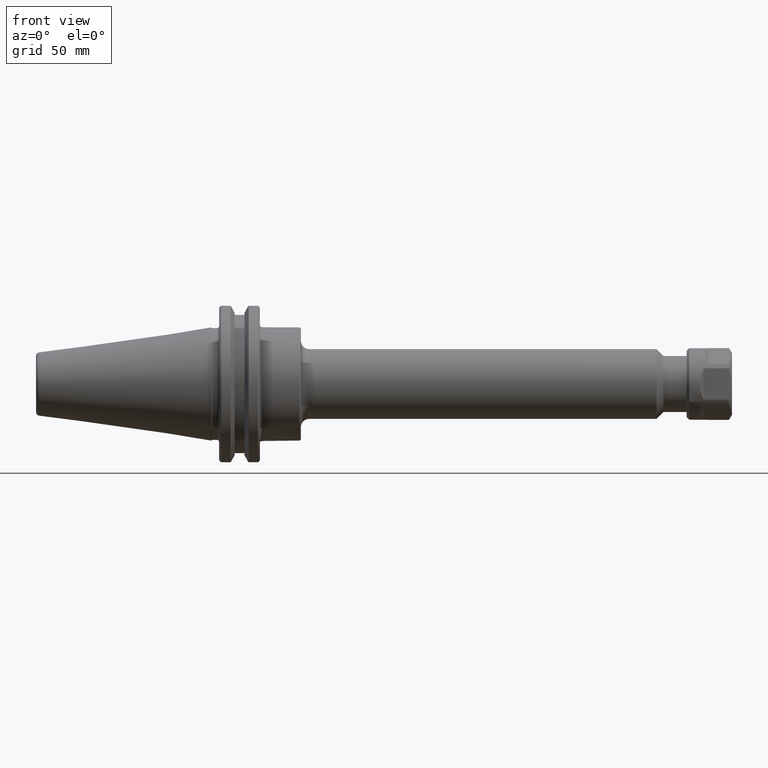
[diagram: clean part render]
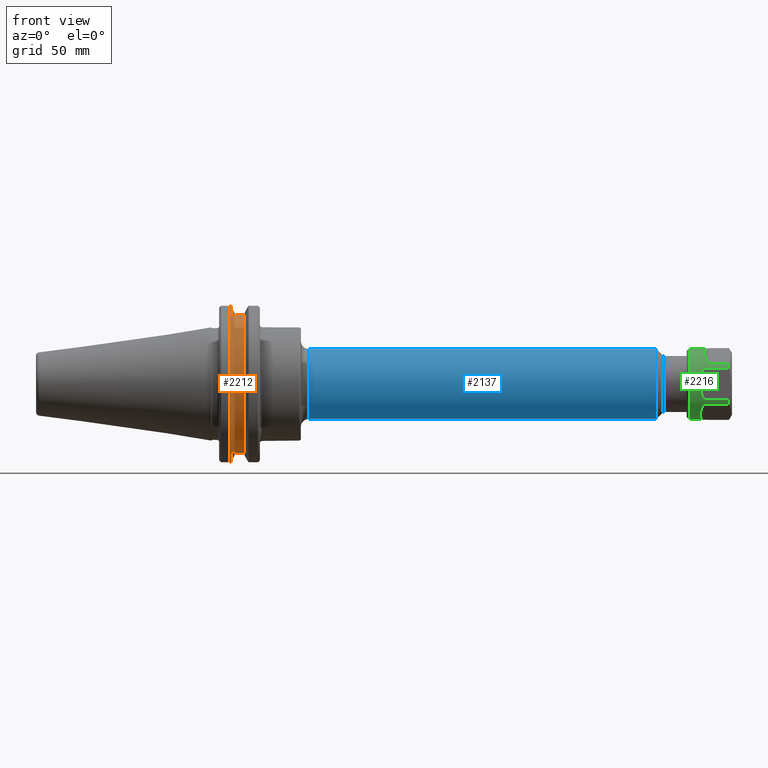
[diagram: same view with three faces highlighted in distinct colors, each labeled with its STEP entity id]
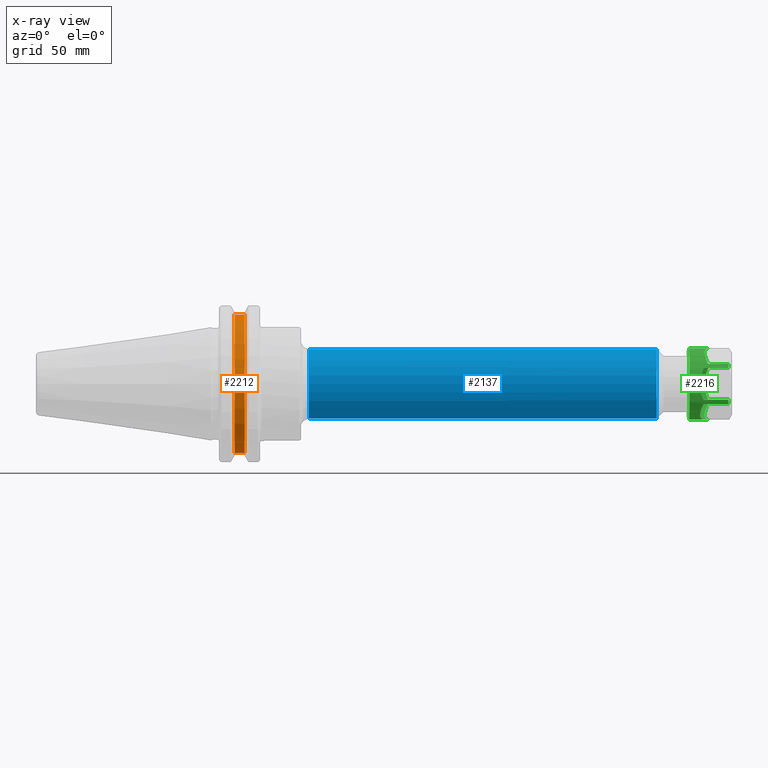
[diagram: x-ray of the same camera — body ghosted, the three highlighted faces saturated]
A machine part, front view with three faces highlighted in distinct colors.
The next image is the same camera in x-ray (body ghosted, the three faces saturated) — at least one of them is partly hidden behind the body in this view.
Their STEP definitions:

[orange] entity #2212 — the highlighted cylindrical surface (partial cylindrical patch) has radius 28.1813 mm, axis along (-1, -0, 0).
#132=LINE('',#3401,#254);
#147=LINE('',#3450,#269);
#254=VECTOR('',#2723,0.151);
#269=VECTOR('',#2754,0.151);
#447=CYLINDRICAL_SURFACE('',#2422,1.10949999999971);
#598=FACE_OUTER_BOUND('',#768,.T.);
#768=EDGE_LOOP('',(#1792,#1793,#1794,#1795));
#895=CIRCLE('',#2421,1.10949999999972);
#896=CIRCLE('',#2423,1.1094999999997);
#1010=VERTEX_POINT('',#3398);
#1011=VERTEX_POINT('',#3400);
#1024=VERTEX_POINT('',#3447);
#1025=VERTEX_POINT('',#3449);
#1232=EDGE_CURVE('',#1011,#1010,#132,.T.);
#1253=EDGE_CURVE('',#1025,#1024,#147,.T.);
#1327=EDGE_CURVE('',#1025,#1010,#895,.T.);
#1328=EDGE_CURVE('',#1024,#1011,#896,.T.);
#1792=ORIENTED_EDGE('',*,*,#1253,.T.);
#1793=ORIENTED_EDGE('',*,*,#1328,.T.);
#1794=ORIENTED_EDGE('',*,*,#1232,.T.);
#1795=ORIENTED_EDGE('',*,*,#1327,.F.);
#2212=ADVANCED_FACE('',(#598),#447,.T.);
#2421=AXIS2_PLACEMENT_3D('',#3652,#2915,#2916);
#2422=AXIS2_PLACEMENT_3D('',#3653,#2917,#2918);
#2423=AXIS2_PLACEMENT_3D('',#3654,#2919,#2920);
#2723=DIRECTION('',(-1.,-1.62451355720802E-13,0.));
#2754=DIRECTION('',(1.,1.62451355720802E-13,0.));
#2915=DIRECTION('center_axis',(-1.,-1.62451355720802E-13,0.));
#2916=DIRECTION('ref_axis',(-1.62482077846417E-13,1.,0.));
#2917=DIRECTION('center_axis',(-1.,-1.62451355720802E-13,0.));
#2918=DIRECTION('ref_axis',(-1.62482077846417E-13,1.,0.));
#2919=DIRECTION('center_axis',(-1.,-1.62451355720802E-13,0.));
#2920=DIRECTION('ref_axis',(-1.62482077846417E-13,1.,0.));
#3398=CARTESIAN_POINT('',(0.362850000000023,-0.319999999999719,1.06235128370958));
#3400=CARTESIAN_POINT('',(0.513850000000022,-0.319999999999719,1.06235128370954));
#3401=CARTESIAN_POINT('',(0.438350000000022,-0.319999999999719,1.06235128370956));
#3447=CARTESIAN_POINT('',(0.513850000000022,-0.319999999999698,-1.06235128370955));
#3449=CARTESIAN_POINT('',(0.362850000000023,-0.319999999999723,-1.06235128370958));
#3450=CARTESIAN_POINT('',(0.438350000000022,-0.319999999999711,-1.06235128370956));
#3652=CARTESIAN_POINT('Origin',(0.362849999999971,2.77239483673115E-13,
0.));
#3653=CARTESIAN_POINT('Origin',(0.438349999999971,2.89504561030036E-13,
0.));
#3654=CARTESIAN_POINT('Origin',(0.513849999999971,3.01769638386956E-13,
0.));

[blue] entity #2137 — the highlighted cylindrical surface (bore or boss wall) has radius 13.716 mm, axis along (1, 0, 0).
#422=CYLINDRICAL_SURFACE('',#2294,0.54);
#467=FACE_BOUND('',#669,.T.);
#523=FACE_OUTER_BOUND('',#668,.T.);
#668=EDGE_LOOP('',(#1463));
#669=EDGE_LOOP('',(#1464));
#854=CIRCLE('',#2293,0.54);
#855=CIRCLE('',#2295,0.540000000000001);
#958=VERTEX_POINT('',#3232);
#959=VERTEX_POINT('',#3235);
#1166=EDGE_CURVE('',#958,#958,#854,.T.);
#1167=EDGE_CURVE('',#959,#959,#855,.T.);
#1463=ORIENTED_EDGE('',*,*,#1167,.F.);
#1464=ORIENTED_EDGE('',*,*,#1166,.F.);
#2137=ADVANCED_FACE('',(#523,#467),#422,.T.);
#2293=AXIS2_PLACEMENT_3D('',#3233,#2584,#2585);
#2294=AXIS2_PLACEMENT_3D('',#3234,#2586,#2587);
#2295=AXIS2_PLACEMENT_3D('',#3236,#2588,#2589);
#2584=DIRECTION('center_axis',(-1.,0.,0.));
#2585=DIRECTION('ref_axis',(0.,-1.,-1.22464679914735E-16));
#2586=DIRECTION('center_axis',(1.,0.,0.));
#2587=DIRECTION('ref_axis',(0.,1.,0.));
#2588=DIRECTION('center_axis',(1.,0.,0.));
#2589=DIRECTION('ref_axis',(0.,1.,0.));
#3232=CARTESIAN_POINT('',(1.505,0.54,0.));
#3233=CARTESIAN_POINT('Origin',(1.505,0.,0.));
#3234=CARTESIAN_POINT('Origin',(4.11003543307086,0.,0.));
#3235=CARTESIAN_POINT('',(6.84007086614173,0.540000000000001,0.));
#3236=CARTESIAN_POINT('Origin',(6.84007086614173,0.,0.));

[green] entity #2216 — the highlighted cylindrical surface (bore or boss wall) has radius 14 mm, axis along (-1, 0, -0).
#86=ELLIPSE('',#2428,19.7989898732233,14.);
#87=ELLIPSE('',#2432,19.7989898732233,14.);
#88=ELLIPSE('',#2434,19.7989898732233,14.);
#89=ELLIPSE('',#2436,19.7989898732233,14.);
#90=ELLIPSE('',#2438,19.7989898732233,14.);
#91=ELLIPSE('',#2440,19.7989898732233,14.);
#175=LINE('',#3667,#297);
#176=LINE('',#3669,#298);
#177=LINE('',#3673,#299);
#178=LINE('',#3677,#300);
#179=LINE('',#3681,#301);
#180=LINE('',#3685,#302);
#181=LINE('',#3689,#303);
#182=LINE('',#3693,#304);
#183=LINE('',#3697,#305);
#184=LINE('',#3701,#306);
#185=LINE('',#3705,#307);
#186=LINE('',#3709,#308);
#297=VECTOR('',#2936,9.59380985847815);
#298=VECTOR('',#2937,9.59380985847815);
#299=VECTOR('',#2940,9.59380985847815);
#300=VECTOR('',#2943,9.59380985847815);
#301=VECTOR('',#2946,7.82180985847815);
#302=VECTOR('',#2949,7.82180985847815);
#303=VECTOR('',#2952,7.82180985847815);
#304=VECTOR('',#2955,7.82180985847815);
#305=VECTOR('',#2958,7.82180985847815);
#306=VECTOR('',#2961,7.82180985847815);
#307=VECTOR('',#2964,7.82180985847815);
#308=VECTOR('',#2967,7.82180985847815);
#449=CYLINDRICAL_SURFACE('',#2429,14.);
#492=FACE_BOUND('',#773,.T.);
#602=FACE_OUTER_BOUND('',#772,.T.);
#772=EDGE_LOOP('',(#1806));
#773=EDGE_LOOP('',(#1807,#1808,#1809,#1810,#1811,#1812,#1813,#1814,#1815,
#1816,#1817,#1818,#1819,#1820,#1821,#1822,#1823,#1824,#1825,#1826,#1827,
#1828,#1829,#1830));
#897=CIRCLE('',#2430,14.);
#898=CIRCLE('',#2431,14.);
#899=CIRCLE('',#2433,14.);
#900=CIRCLE('',#2435,14.);
#901=CIRCLE('',#2437,14.);
#902=CIRCLE('',#2439,14.);
#903=CIRCLE('',#2441,14.);
#1068=VERTEX_POINT('',#3659);
#1069=VERTEX_POINT('',#3660);
#1070=VERTEX_POINT('',#3664);
#1071=VERTEX_POINT('',#3666);
#1072=VERTEX_POINT('',#3668);
#1073=VERTEX_POINT('',#3670);
#1074=VERTEX_POINT('',#3672);
#1075=VERTEX_POINT('',#3674);
#1076=VERTEX_POINT('',#3676);
#1077=VERTEX_POINT('',#3678);
#1078=VERTEX_POINT('',#3680);
#1079=VERTEX_POINT('',#3682);
#1080=VERTEX_POINT('',#3684);
#1081=VERTEX_POINT('',#3686);
#1082=VERTEX_POINT('',#3688);
#1083=VERTEX_POINT('',#3690);
#1084=VERTEX_POINT('',#3692);
#1085=VERTEX_POINT('',#3694);
#1086=VERTEX_POINT('',#3696);
#1087=VERTEX_POINT('',#3698);
#1088=VERTEX_POINT('',#3700);
#1089=VERTEX_POINT('',#3702);
#1090=VERTEX_POINT('',#3704);
#1091=VERTEX_POINT('',#3706);
#1092=VERTEX_POINT('',#3708);
#1329=EDGE_CURVE('',#1068,#1069,#86,.T.);
#1331=EDGE_CURVE('',#1070,#1070,#897,.T.);
#1332=EDGE_CURVE('',#1071,#1068,#175,.T.);
#1333=EDGE_CURVE('',#1069,#1072,#176,.T.);
#1334=EDGE_CURVE('',#1072,#1073,#898,.T.);
#1335=EDGE_CURVE('',#1073,#1074,#177,.T.);
#1336=EDGE_CURVE('',#1074,#1075,#87,.T.);
#1337=EDGE_CURVE('',#1075,#1076,#178,.T.);
#1338=EDGE_CURVE('',#1076,#1077,#899,.T.);
#1339=EDGE_CURVE('',#1077,#1078,#179,.T.);
#1340=EDGE_CURVE('',#1078,#1079,#88,.T.);
#1341=EDGE_CURVE('',#1079,#1080,#180,.T.);
#1342=EDGE_CURVE('',#1080,#1081,#900,.T.);
#1343=EDGE_CURVE('',#1081,#1082,#181,.T.);
#1344=EDGE_CURVE('',#1082,#1083,#89,.T.);
#1345=EDGE_CURVE('',#1083,#1084,#182,.T.);
#1346=EDGE_CURVE('',#1084,#1085,#901,.T.);
#1347=EDGE_CURVE('',#1085,#1086,#183,.T.);
#1348=EDGE_CURVE('',#1086,#1087,#90,.T.);
#1349=EDGE_CURVE('',#1087,#1088,#184,.T.);
#1350=EDGE_CURVE('',#1088,#1089,#902,.T.);
#1351=EDGE_CURVE('',#1089,#1090,#185,.T.);
#1352=EDGE_CURVE('',#1090,#1091,#91,.T.);
#1353=EDGE_CURVE('',#1091,#1092,#186,.T.);
#1354=EDGE_CURVE('',#1092,#1071,#903,.T.);
#1806=ORIENTED_EDGE('',*,*,#1331,.F.);
#1807=ORIENTED_EDGE('',*,*,#1332,.T.);
#1808=ORIENTED_EDGE('',*,*,#1329,.T.);
#1809=ORIENTED_EDGE('',*,*,#1333,.T.);
#1810=ORIENTED_EDGE('',*,*,#1334,.T.);
#1811=ORIENTED_EDGE('',*,*,#1335,.T.);
#1812=ORIENTED_EDGE('',*,*,#1336,.T.);
#1813=ORIENTED_EDGE('',*,*,#1337,.T.);
#1814=ORIENTED_EDGE('',*,*,#1338,.T.);
#1815=ORIENTED_EDGE('',*,*,#1339,.T.);
#1816=ORIENTED_EDGE('',*,*,#1340,.T.);
#1817=ORIENTED_EDGE('',*,*,#1341,.T.);
#1818=ORIENTED_EDGE('',*,*,#1342,.T.);
#1819=ORIENTED_EDGE('',*,*,#1343,.T.);
#1820=ORIENTED_EDGE('',*,*,#1344,.T.);
#1821=ORIENTED_EDGE('',*,*,#1345,.T.);
#1822=ORIENTED_EDGE('',*,*,#1346,.T.);
#1823=ORIENTED_EDGE('',*,*,#1347,.T.);
#1824=ORIENTED_EDGE('',*,*,#1348,.T.);
#1825=ORIENTED_EDGE('',*,*,#1349,.T.);
#1826=ORIENTED_EDGE('',*,*,#1350,.T.);
#1827=ORIENTED_EDGE('',*,*,#1351,.T.);
#1828=ORIENTED_EDGE('',*,*,#1352,.T.);
#1829=ORIENTED_EDGE('',*,*,#1353,.T.);
#1830=ORIENTED_EDGE('',*,*,#1354,.T.);
#2216=ADVANCED_FACE('',(#602,#492),#449,.T.);
#2428=AXIS2_PLACEMENT_3D('',#3661,#2929,#2930);
#2429=AXIS2_PLACEMENT_3D('',#3663,#2932,#2933);
#2430=AXIS2_PLACEMENT_3D('',#3665,#2934,#2935);
#2431=AXIS2_PLACEMENT_3D('',#3671,#2938,#2939);
#2432=AXIS2_PLACEMENT_3D('',#3675,#2941,#2942);
#2433=AXIS2_PLACEMENT_3D('',#3679,#2944,#2945);
#2434=AXIS2_PLACEMENT_3D('',#3683,#2947,#2948);
#2435=AXIS2_PLACEMENT_3D('',#3687,#2950,#2951);
#2436=AXIS2_PLACEMENT_3D('',#3691,#2953,#2954);
#2437=AXIS2_PLACEMENT_3D('',#3695,#2956,#2957);
#2438=AXIS2_PLACEMENT_3D('',#3699,#2959,#2960);
#2439=AXIS2_PLACEMENT_3D('',#3703,#2962,#2963);
#2440=AXIS2_PLACEMENT_3D('',#3707,#2965,#2966);
#2441=AXIS2_PLACEMENT_3D('',#3710,#2968,#2969);
#2929=DIRECTION('center_axis',(0.707106781186548,-0.612372435695794,0.353553390593274));
#2930=DIRECTION('ref_axis',(0.707106781186548,0.612372435695794,-0.353553390593274));
#2932=DIRECTION('center_axis',(1.,0.,0.));
#2933=DIRECTION('ref_axis',(5.76530977291351E-18,1.,0.));
#2934=DIRECTION('center_axis',(1.,0.,0.));
#2935=DIRECTION('ref_axis',(5.76530977291351E-18,1.,0.));
#2936=DIRECTION('',(1.,0.,0.));
#2937=DIRECTION('',(-1.,0.,0.));
#2938=DIRECTION('center_axis',(1.,0.,0.));
#2939=DIRECTION('ref_axis',(5.76530977291351E-18,1.,0.));
#2940=DIRECTION('',(1.,0.,0.));
#2941=DIRECTION('center_axis',(0.707106781186548,-0.612372435695794,-0.353553390593273));
#2942=DIRECTION('ref_axis',(0.707106781186547,0.612372435695795,0.353553390593274));
#2943=DIRECTION('',(-1.,0.,0.));
#2944=DIRECTION('center_axis',(1.,0.,0.));
#2945=DIRECTION('ref_axis',(5.76530977291351E-18,1.,0.));
#2946=DIRECTION('',(1.,0.,0.));
#2947=DIRECTION('center_axis',(0.707106781186547,0.,-0.707106781186548));
#2948=DIRECTION('ref_axis',(0.707106781186548,0.,0.707106781186547));
#2949=DIRECTION('',(-1.,0.,0.));
#2950=DIRECTION('center_axis',(1.,0.,0.));
#2951=DIRECTION('ref_axis',(5.76530977291351E-18,1.,0.));
#2952=DIRECTION('',(1.,0.,0.));
#2953=DIRECTION('center_axis',(0.707106781186547,0.612372435695795,-0.353553390593274));
#2954=DIRECTION('ref_axis',(-0.707106781186548,0.612372435695794,-0.353553390593274));
#2955=DIRECTION('',(-1.,0.,0.));
#2956=DIRECTION('center_axis',(1.,0.,0.));
#2957=DIRECTION('ref_axis',(5.76530977291351E-18,1.,0.));
#2958=DIRECTION('',(1.,0.,0.));
#2959=DIRECTION('center_axis',(0.707106781186547,0.612372435695795,0.353553390593274));
#2960=DIRECTION('ref_axis',(-0.707106781186548,0.612372435695794,0.353553390593273));
#2961=DIRECTION('',(-1.,0.,0.));
#2962=DIRECTION('center_axis',(1.,0.,0.));
#2963=DIRECTION('ref_axis',(5.76530977291351E-18,1.,0.));
#2964=DIRECTION('',(1.,0.,0.));
#2965=DIRECTION('center_axis',(0.707106781186547,1.11022302462516E-16,0.707106781186548));
#2966=DIRECTION('ref_axis',(-0.707106781186548,0.,0.707106781186547));
#2967=DIRECTION('',(-1.,0.,0.));
#2968=DIRECTION('center_axis',(1.,0.,0.));
#2969=DIRECTION('ref_axis',(5.76530977291351E-18,1.,0.));
#3659=CARTESIAN_POINT('',(10.715,7.80958989492165,-11.6193935157192));
#3660=CARTESIAN_POINT('',(10.715,13.9674849086418,-0.953606484280796));
#3661=CARTESIAN_POINT('Origin',(-1.858,0.,0.));
#3663=CARTESIAN_POINT('Origin',(8.74559507076093,0.,0.));
#3664=CARTESIAN_POINT('',(16.37,14.,0.));
#3665=CARTESIAN_POINT('Origin',(16.37,0.,0.));
#3666=CARTESIAN_POINT('',(1.12119014152185,7.80958989492164,-11.6193935157192));
#3667=CARTESIAN_POINT('',(8.74559507076093,7.80958989492165,-11.6193935157192));
#3668=CARTESIAN_POINT('',(1.12119014152185,13.9674849086418,-0.95360648428079));
#3669=CARTESIAN_POINT('',(8.74559507076093,13.9674849086418,-0.953606484280797));
#3670=CARTESIAN_POINT('',(1.12119014152185,13.9674849086418,0.953606484280772));
#3671=CARTESIAN_POINT('Origin',(1.12119014152185,0.,0.));
#3672=CARTESIAN_POINT('',(10.715,13.9674849086418,0.95360648428078));
#3673=CARTESIAN_POINT('',(8.74559507076093,13.9674849086418,0.95360648428078));
#3674=CARTESIAN_POINT('',(10.715,7.80958989492165,11.6193935157192));
#3675=CARTESIAN_POINT('Origin',(-1.85799999999998,0.,0.));
#3676=CARTESIAN_POINT('',(1.12119014152185,7.80958989492166,11.6193935157192));
#3677=CARTESIAN_POINT('',(8.74559507076093,7.80958989492165,11.6193935157192));
#3678=CARTESIAN_POINT('',(1.12119014152185,6.1578950137202,12.573));
#3679=CARTESIAN_POINT('Origin',(1.12119014152185,0.,0.));
#3680=CARTESIAN_POINT('',(8.943,6.15789501372019,12.573));
#3681=CARTESIAN_POINT('',(8.74559507076093,6.15789501372019,12.573));
#3682=CARTESIAN_POINT('',(8.943,-6.15789501372019,12.573));
#3683=CARTESIAN_POINT('Origin',(-3.63000000000001,0.,0.));
#3684=CARTESIAN_POINT('',(1.12119014152185,-6.1578950137202,12.573));
#3685=CARTESIAN_POINT('',(8.74559507076093,-6.15789501372019,12.573));
#3686=CARTESIAN_POINT('',(1.12119014152185,-7.80958989492165,11.6193935157192));
#3687=CARTESIAN_POINT('Origin',(1.12119014152185,0.,0.));
#3688=CARTESIAN_POINT('',(8.943,-7.80958989492165,11.6193935157192));
#3689=CARTESIAN_POINT('',(8.74559507076093,-7.80958989492165,11.6193935157192));
#3690=CARTESIAN_POINT('',(8.943,-13.9674849086418,0.95360648428079));
#3691=CARTESIAN_POINT('Origin',(-3.63000000000001,0.,0.));
#3692=CARTESIAN_POINT('',(1.12119014152185,-13.9674849086418,0.953606484280786));
#3693=CARTESIAN_POINT('',(8.74559507076093,-13.9674849086418,0.95360648428079));
#3694=CARTESIAN_POINT('',(1.12119014152185,-13.9674849086418,-0.953606484280781));
#3695=CARTESIAN_POINT('Origin',(1.12119014152185,0.,0.));
#3696=CARTESIAN_POINT('',(8.943,-13.9674849086418,-0.953606484280788));
#3697=CARTESIAN_POINT('',(8.74559507076093,-13.9674849086418,-0.953606484280785));
#3698=CARTESIAN_POINT('',(8.943,-7.80958989492165,-11.6193935157192));
#3699=CARTESIAN_POINT('Origin',(-3.63000000000001,0.,0.));
#3700=CARTESIAN_POINT('',(1.12119014152185,-7.80958989492165,-11.6193935157192));
#3701=CARTESIAN_POINT('',(8.74559507076093,-7.80958989492165,-11.6193935157192));
#3702=CARTESIAN_POINT('',(1.12119014152185,-6.1578950137202,-12.573));
#3703=CARTESIAN_POINT('Origin',(1.12119014152185,0.,0.));
#3704=CARTESIAN_POINT('',(8.943,-6.1578950137202,-12.573));
#3705=CARTESIAN_POINT('',(8.74559507076093,-6.1578950137202,-12.573));
#3706=CARTESIAN_POINT('',(8.943,6.15789501372019,-12.573));
#3707=CARTESIAN_POINT('Origin',(-3.63000000000001,0.,0.));
#3708=CARTESIAN_POINT('',(1.12119014152185,6.1578950137202,-12.573));
#3709=CARTESIAN_POINT('',(8.74559507076093,6.15789501372019,-12.573));
#3710=CARTESIAN_POINT('Origin',(1.12119014152185,0.,0.));